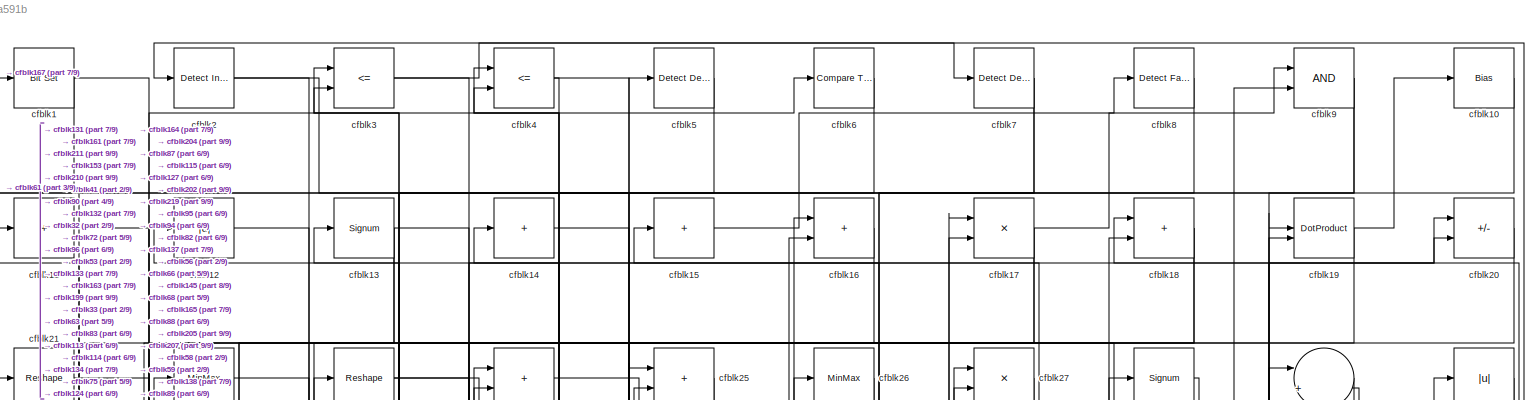
[diagram: root canvas - part 1/9, full width, top band]
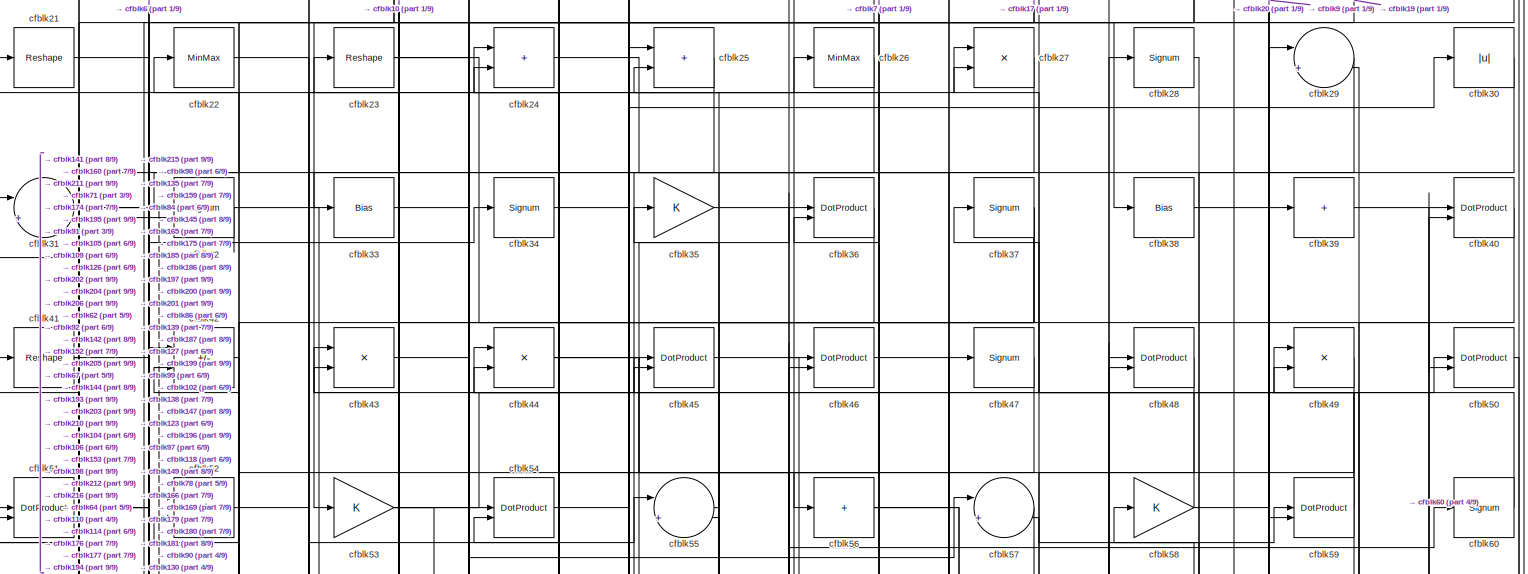
[diagram: root canvas - part 2/9, full width, top band]
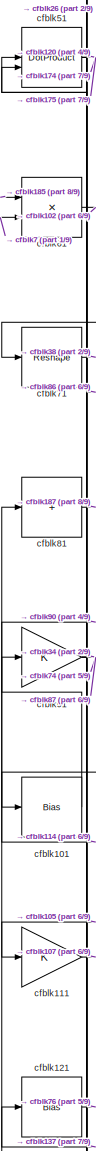
[diagram: root canvas - part 3/9, middle left region]
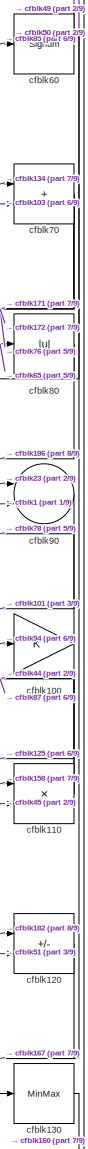
[diagram: root canvas - part 4/9, middle right region]
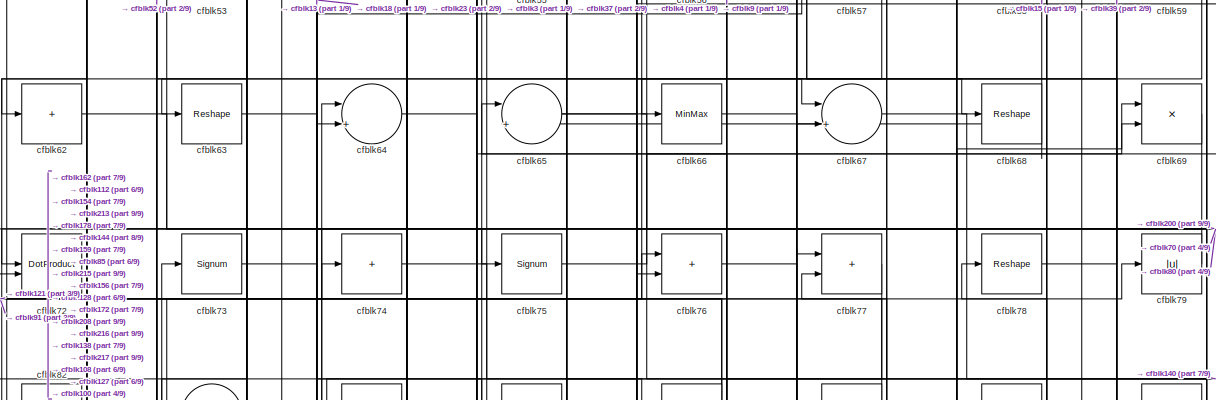
[diagram: root canvas - part 5/9, full width, top band]
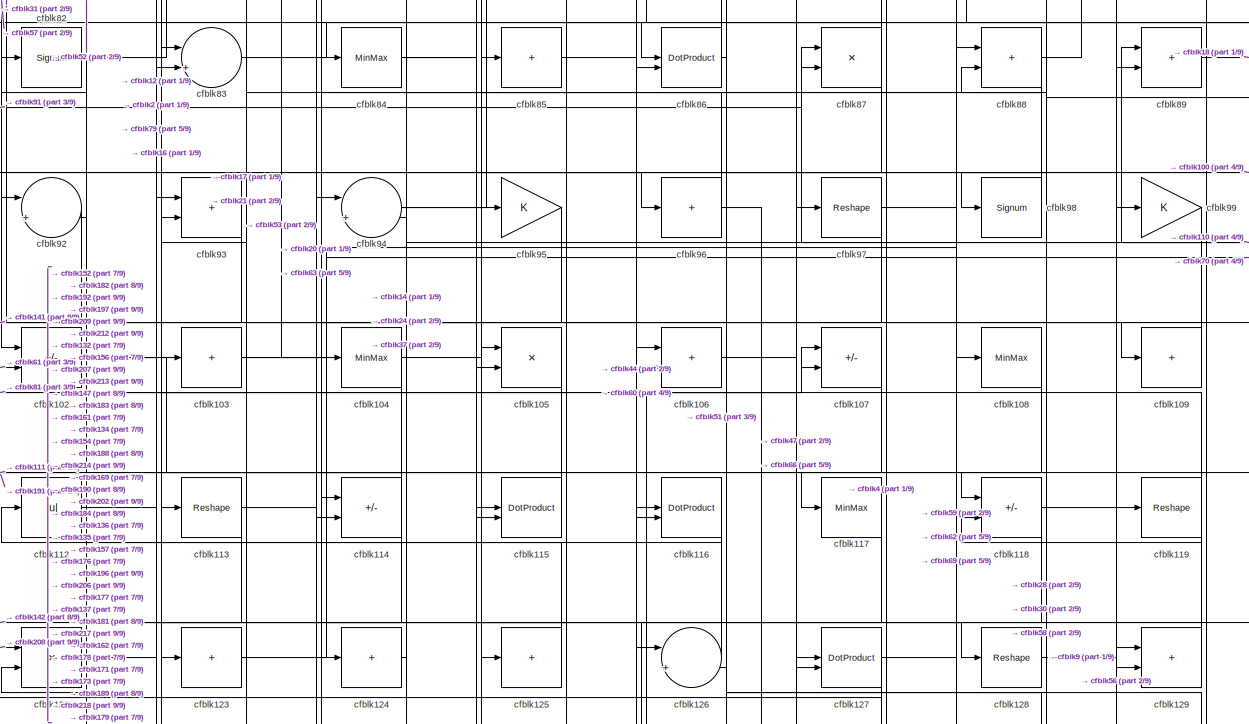
[diagram: root canvas - part 6/9, full width, middle band]
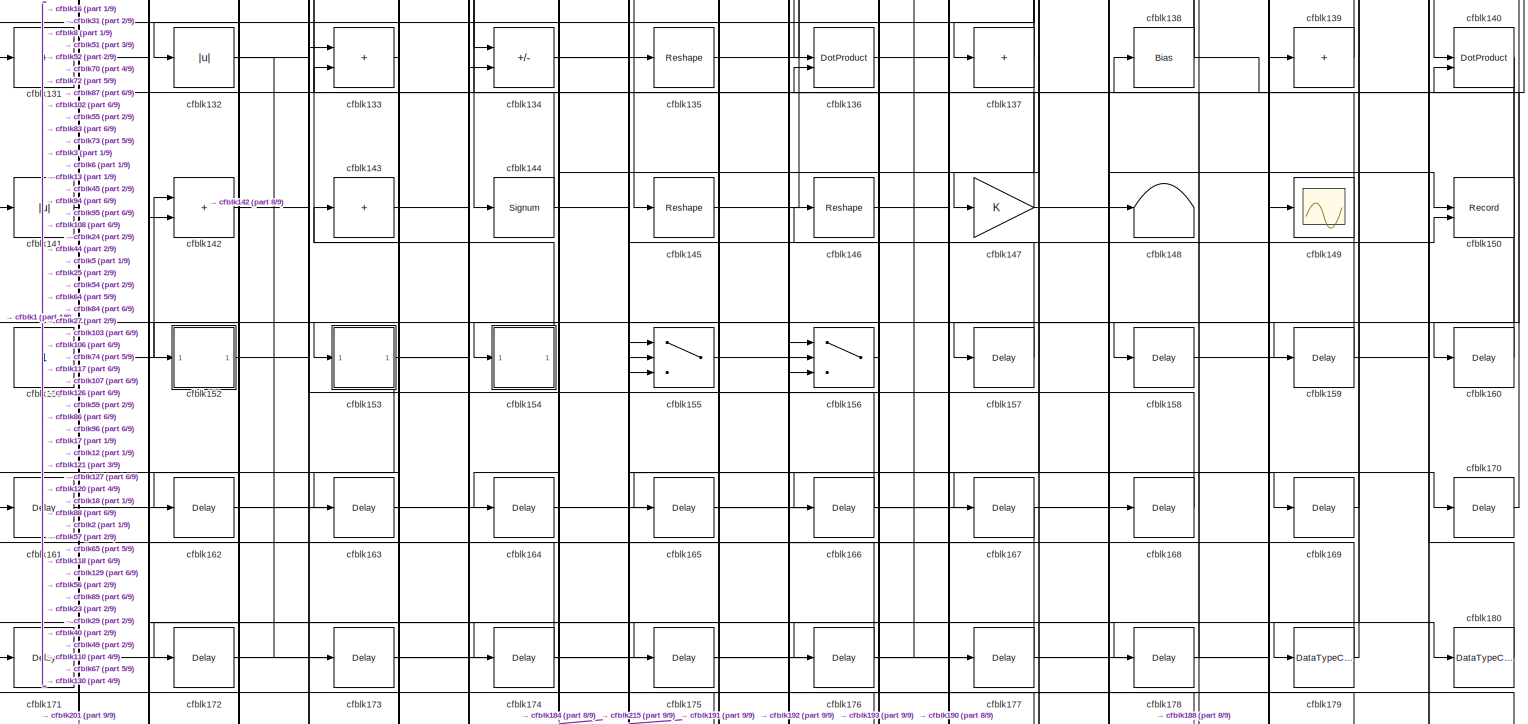
[diagram: root canvas - part 7/9, full width, bottom band]
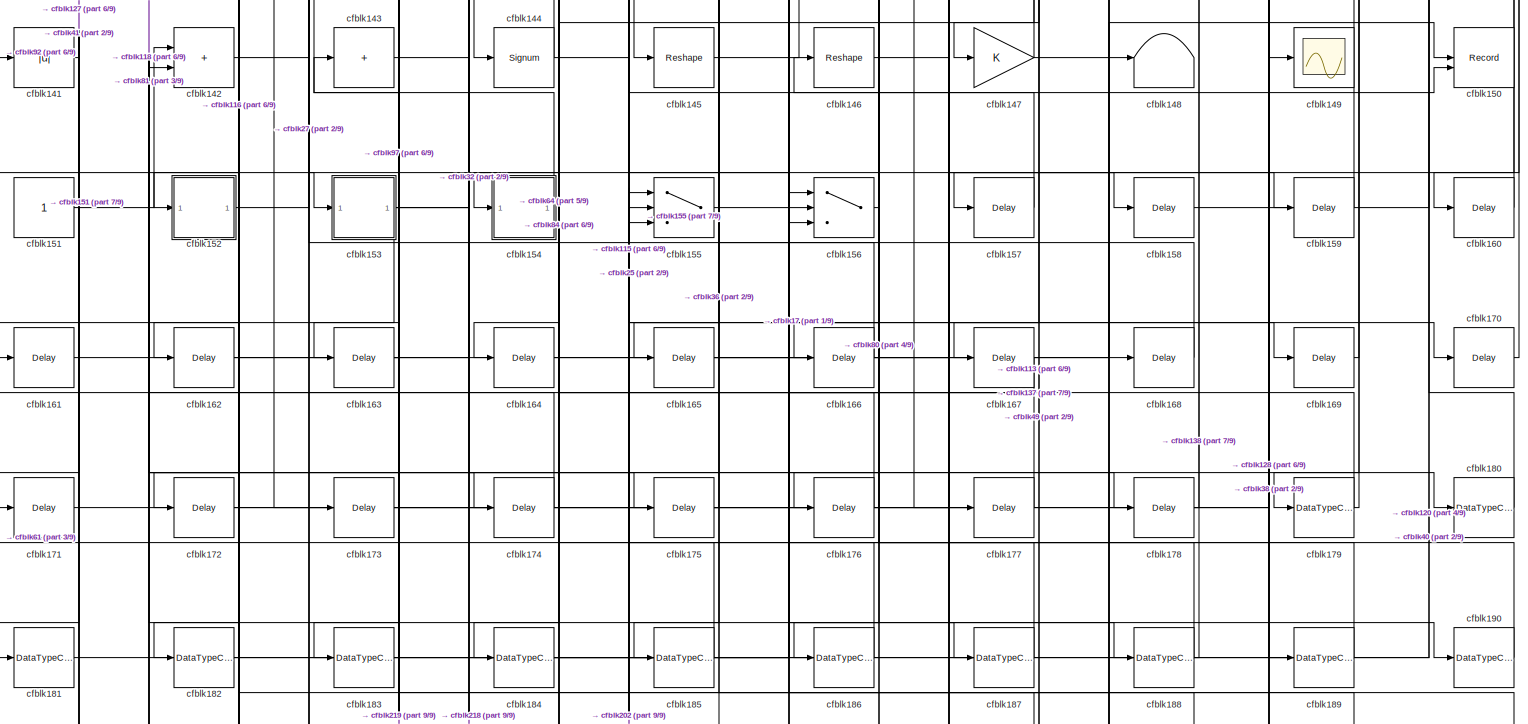
[diagram: root canvas - part 8/9, full width, bottom band]
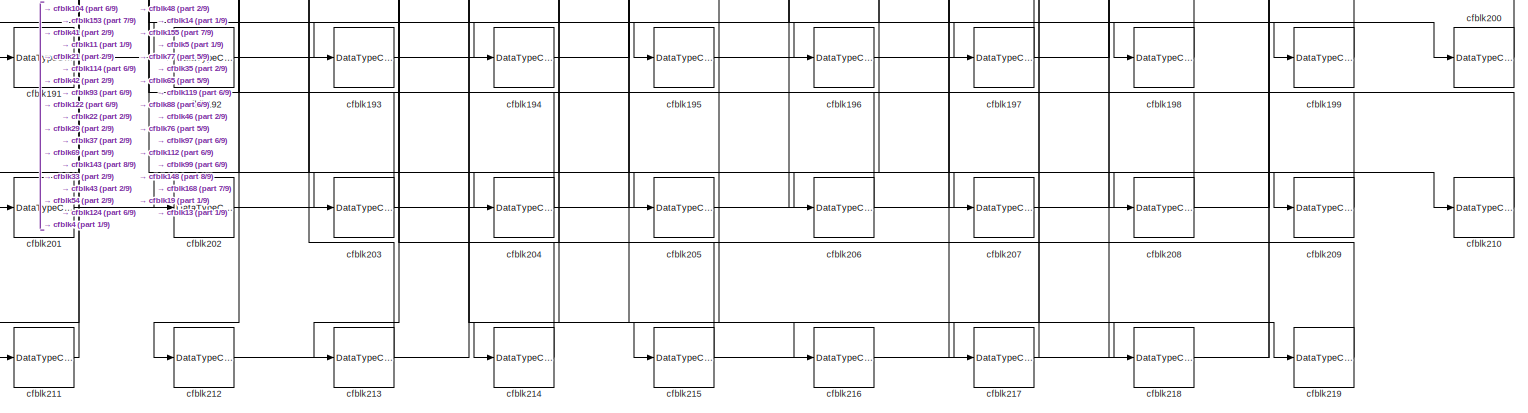
[diagram: root canvas - part 9/9, full width, bottom band]
MODEL slx_0cc3bbaa591b
KIND model
CONFIG AbsTol = auto
CONFIG EnableMultiTasking = off
CONFIG FixedStep = auto
CONFIG MaxStep = auto
CONFIG MinStep = auto
CONFIG RelTol = 1e-3
CONFIG SampleTimeConstraint = Unconstrained
CONFIG SolverName = VariableStepAuto
CONFIG StartTime = 0.0
CONFIG StopTime = 10.0
BLOCK [Reference] cfblk1  REF=simulink/Logic and Bit
Operations/Bit Set
  LibrarySourceBlock = hdlsllib/Logic and Bit\nOperations/Bit Set
  SourceBlock = simulink/Logic and Bit\nOperations/Bit Set
  SourceType = Bit Set
BLOCK [Bias] cfblk10
  Bias = 0.0
  SaturateOnIntegerOverflow = off
BLOCK [Gain] cfblk100
BLOCK [Bias] cfblk101
  Bias = 0.0
  SaturateOnIntegerOverflow = off
BLOCK [Sum] cfblk102
  IconShape = rectangular
  Inputs = +-
BLOCK [Sum] cfblk103
  IconShape = rectangular
  Inputs = +
BLOCK [MinMax] cfblk104
BLOCK [Product] cfblk105
  Inputs = */
  RndMeth = Zero
  SaturateOnIntegerOverflow = on
BLOCK [Sum] cfblk106
  IconShape = rectangular
BLOCK [Sum] cfblk107
  IconShape = rectangular
  Inputs = +-
BLOCK [MinMax] cfblk108
BLOCK [Sum] cfblk109
  IconShape = rectangular
  Inputs = +
BLOCK [Sum] cfblk11
  IconShape = rectangular
  Inputs = +
BLOCK [Product] cfblk110
  Inputs = */
  RndMeth = Zero
  SaturateOnIntegerOverflow = on
BLOCK [Gain] cfblk111
BLOCK [Abs] cfblk112
  SaturateOnIntegerOverflow = off
BLOCK [Reshape] cfblk113
BLOCK [Sum] cfblk114
  IconShape = rectangular
  Inputs = +-
BLOCK [DotProduct] cfblk115
  OutDataTypeStr = Inherit: Inherit via internal rule
BLOCK [DotProduct] cfblk116
  OutDataTypeStr = Inherit: Inherit via internal rule
BLOCK [MinMax] cfblk117
BLOCK [Sum] cfblk118
  IconShape = rectangular
  Inputs = +-
BLOCK [Reshape] cfblk119
BLOCK [Abs] cfblk12
  SaturateOnIntegerOverflow = off
BLOCK [Sum] cfblk120
  IconShape = rectangular
  Inputs = +-
BLOCK [Bias] cfblk121
  Bias = 0.0
  SaturateOnIntegerOverflow = off
BLOCK [Product] cfblk122
  Inputs = */
  RndMeth = Zero
  SaturateOnIntegerOverflow = on
BLOCK [Sum] cfblk123
  IconShape = rectangular
  Inputs = +
BLOCK [Sum] cfblk124
  IconShape = rectangular
  Inputs = +
BLOCK [Sum] cfblk125
  IconShape = rectangular
  Inputs = +
BLOCK [Sum] cfblk126
  Inputs = |++
BLOCK [DotProduct] cfblk127
  OutDataTypeStr = Inherit: Inherit via internal rule
BLOCK [Reshape] cfblk128
BLOCK [Sum] cfblk129
  IconShape = rectangular
BLOCK [Signum] cfblk13
BLOCK [MinMax] cfblk130
BLOCK [Sum] cfblk131
  IconShape = rectangular
  Inputs = +
BLOCK [Abs] cfblk132
  SaturateOnIntegerOverflow = off
BLOCK [Sum] cfblk133
  IconShape = rectangular
BLOCK [Sum] cfblk134
  IconShape = rectangular
  Inputs = +-
BLOCK [Reshape] cfblk135
BLOCK [DotProduct] cfblk136
  OutDataTypeStr = Inherit: Inherit via internal rule
BLOCK [Sum] cfblk137
  IconShape = rectangular
  Inputs = +
BLOCK [Bias] cfblk138
  Bias = 0.0
  SaturateOnIntegerOverflow = off
BLOCK [Sum] cfblk139
  IconShape = rectangular
  Inputs = +
BLOCK [Sum] cfblk14
  IconShape = rectangular
  Inputs = +
BLOCK [DotProduct] cfblk140
  OutDataTypeStr = Inherit: Inherit via internal rule
BLOCK [Abs] cfblk141
  SaturateOnIntegerOverflow = off
BLOCK [Sum] cfblk142
  IconShape = rectangular
BLOCK [Sum] cfblk143
  IconShape = rectangular
  Inputs = +
BLOCK [Signum] cfblk144
BLOCK [Reshape] cfblk145
BLOCK [Reshape] cfblk146
BLOCK [Gain] cfblk147
BLOCK [Terminator] cfblk148
BLOCK [Scope] cfblk149
  Floating = off
  NumInputPorts = 1
  ScopeSpecificationString = Simulink.scopes.TimeScopeBlockCfg('CurrentConfiguration', extmgr.ConfigurationSet(extmgr.Configuration('Core','General UI',true),extmgr.Configuration('Core','Source UI',true),extmgr.Configuration('Sources','WiredSimulink',true,'DataLoggingVariableName','ScopeData2','DataLoggingSaveFormat','Array','DataLoggingLimitDataPoints',true,'DataLoggingDecimation','1'),extmgr.Configuration('Visuals','Time Do...<+868ch>
BLOCK [Sum] cfblk15
  IconShape = rectangular
  Inputs = +
BLOCK [Record] cfblk150
  CompatibilityTag = XY
  FileSettingsInternal = {"entries":[{"content":{"excelSettings":{"content":{},"type":"Streamout.ExcelSettings"}},"type":"Streamout.FileSettingStorage","uuid":""}],"packageUris":["http:\/\/schema.mathworks.com\/mf0\/streamout_blocks\/R2020a"],"version":"1.0"}
  Layout = [1 1]
  SignalsInternal = {"entries":[{"content":{"signals":[{"content":{"blockPath":[],"dimensions":[1],"domain":"","lineColor":"#a2142f","plots":[1],"port":1,"signalID":2350,"signalName":"XY Graph:1"},"type":"RecordBlkView.Signal","uuid":""},{"content":{"blockPath":[],"dimensions":[1],"domain":"","lineColor":"#139fff","plots":[1],"port":2,"signalID":2353,"signalName":"XY Graph:2"},"type":"RecordBlkView.Signal","uuid":""}...<+146ch>
  VisualizationBindings = {"xyplotplugin":{"info":[{"series":[{"bindingParametersList":[{"parameter":"X-Axis","signalID":2350,"signalName":"XY Graph:1"},{"parameter":"Y-Axis","signalID":2353,"signalName":"XY Graph:2"}],"seriesID":37193}],"subplotID":1}]}}
  st = -1
BLOCK [Constant] cfblk151
  SampleTime = -1
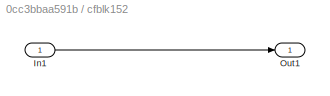
BLOCK [SubSystem] cfblk152
  LibrarySourceBlock = hdlsllib/Ports &\nSubsystems/Subsystem
BLOCK [Inport] cfblk152/In1
BLOCK [Outport] cfblk152/Out1
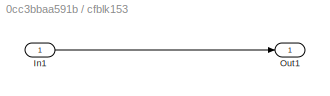
BLOCK [SubSystem] cfblk153
  LibrarySourceBlock = hdlsllib/Ports &\nSubsystems/Subsystem
BLOCK [Inport] cfblk153/In1
BLOCK [Outport] cfblk153/Out1
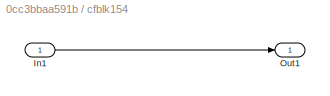
BLOCK [SubSystem] cfblk154
  LibrarySourceBlock = hdlsllib/Ports &\nSubsystems/Subsystem
BLOCK [Inport] cfblk154/In1
BLOCK [Outport] cfblk154/Out1
BLOCK [Switch] cfblk155
  InputSameDT = off
  SaturateOnIntegerOverflow = off
BLOCK [Switch] cfblk156
  InputSameDT = off
  SaturateOnIntegerOverflow = off
BLOCK [Delay] cfblk157
  InputPortMap = u0
  SampleTime = 1
BLOCK [Delay] cfblk158
  InputPortMap = u0
  SampleTime = 1
BLOCK [Delay] cfblk159
  InputPortMap = u0
  SampleTime = 1
BLOCK [Sum] cfblk16
  IconShape = rectangular
BLOCK [Delay] cfblk160
  InputPortMap = u0
  SampleTime = 1
BLOCK [Delay] cfblk161
  InputPortMap = u0
  SampleTime = 1
BLOCK [Delay] cfblk162
  InputPortMap = u0
  SampleTime = 1
BLOCK [Delay] cfblk163
  InputPortMap = u0
  SampleTime = 1
BLOCK [Delay] cfblk164
  InputPortMap = u0
  SampleTime = 1
BLOCK [Delay] cfblk165
  InputPortMap = u0
  SampleTime = 1
BLOCK [Delay] cfblk166
  InputPortMap = u0
  SampleTime = 1
BLOCK [Delay] cfblk167
  InputPortMap = u0
  SampleTime = 1
BLOCK [Delay] cfblk168
  InputPortMap = u0
  SampleTime = 1
BLOCK [Delay] cfblk169
  InputPortMap = u0
  SampleTime = 1
BLOCK [Product] cfblk17
  Inputs = */
  RndMeth = Zero
  SaturateOnIntegerOverflow = on
BLOCK [Delay] cfblk170
  InputPortMap = u0
  SampleTime = 1
BLOCK [Delay] cfblk171
  InputPortMap = u0
  SampleTime = 1
BLOCK [Delay] cfblk172
  InputPortMap = u0
  SampleTime = 1
BLOCK [Delay] cfblk173
  InputPortMap = u0
  SampleTime = 1
BLOCK [Delay] cfblk174
  InputPortMap = u0
  SampleTime = 1
BLOCK [Delay] cfblk175
  InputPortMap = u0
  SampleTime = 1
BLOCK [Delay] cfblk176
  InputPortMap = u0
  SampleTime = 1
BLOCK [Delay] cfblk177
  InputPortMap = u0
  SampleTime = 1
BLOCK [Delay] cfblk178
  InputPortMap = u0
  SampleTime = 1
BLOCK [DataTypeConversion] cfblk179
  RndMeth = Floor
  SaturateOnIntegerOverflow = off
BLOCK [Sum] cfblk18
  IconShape = rectangular
BLOCK [DataTypeConversion] cfblk180
  OutDataTypeStr = uint8
  RndMeth = Floor
  SaturateOnIntegerOverflow = off
BLOCK [DataTypeConversion] cfblk181
  OutDataTypeStr = uint8
  RndMeth = Floor
  SaturateOnIntegerOverflow = off
BLOCK [DataTypeConversion] cfblk182
  OutDataTypeStr = uint8
  RndMeth = Floor
  SaturateOnIntegerOverflow = off
BLOCK [DataTypeConversion] cfblk183
  OutDataTypeStr = uint8
  RndMeth = Floor
  SaturateOnIntegerOverflow = off
BLOCK [DataTypeConversion] cfblk184
  OutDataTypeStr = uint8
  RndMeth = Floor
  SaturateOnIntegerOverflow = off
BLOCK [DataTypeConversion] cfblk185
  OutDataTypeStr = uint8
  RndMeth = Floor
  SaturateOnIntegerOverflow = off
BLOCK [DataTypeConversion] cfblk186
  OutDataTypeStr = uint8
  RndMeth = Floor
  SaturateOnIntegerOverflow = off
BLOCK [DataTypeConversion] cfblk187
  OutDataTypeStr = uint8
  RndMeth = Floor
  SaturateOnIntegerOverflow = off
BLOCK [DataTypeConversion] cfblk188
  RndMeth = Floor
  SaturateOnIntegerOverflow = off
BLOCK [DataTypeConversion] cfblk189
  OutDataTypeStr = uint8
  RndMeth = Floor
  SaturateOnIntegerOverflow = off
BLOCK [DotProduct] cfblk19
  OutDataTypeStr = Inherit: Inherit via internal rule
BLOCK [DataTypeConversion] cfblk190
  OutDataTypeStr = uint8
  RndMeth = Floor
  SaturateOnIntegerOverflow = off
BLOCK [DataTypeConversion] cfblk191
  OutDataTypeStr = uint8
  RndMeth = Floor
  SaturateOnIntegerOverflow = off
BLOCK [DataTypeConversion] cfblk192
  OutDataTypeStr = uint8
  RndMeth = Floor
  SaturateOnIntegerOverflow = off
BLOCK [DataTypeConversion] cfblk193
  OutDataTypeStr = uint8
  RndMeth = Floor
  SaturateOnIntegerOverflow = off
BLOCK [DataTypeConversion] cfblk194
  OutDataTypeStr = uint8
  RndMeth = Floor
  SaturateOnIntegerOverflow = off
BLOCK [DataTypeConversion] cfblk195
  OutDataTypeStr = uint8
  RndMeth = Floor
  SaturateOnIntegerOverflow = off
BLOCK [DataTypeConversion] cfblk196
  OutDataTypeStr = uint8
  RndMeth = Floor
  SaturateOnIntegerOverflow = off
BLOCK [DataTypeConversion] cfblk197
  OutDataTypeStr = uint8
  RndMeth = Floor
  SaturateOnIntegerOverflow = off
BLOCK [DataTypeConversion] cfblk198
  OutDataTypeStr = uint8
  RndMeth = Floor
  SaturateOnIntegerOverflow = off
BLOCK [DataTypeConversion] cfblk199
  OutDataTypeStr = uint8
  RndMeth = Floor
  SaturateOnIntegerOverflow = off
BLOCK [Reference] cfblk2  REF=simulink/Logic and Bit
Operations/Detect
Increase
  LibrarySourceBlock = hdlsllib/Logic and Bit\nOperations/Detect\nIncrease
  SourceBlock = simulink/Logic and Bit\nOperations/Detect\nIncrease
  SourceType = Detect Increase
BLOCK [Sum] cfblk20
  IconShape = rectangular
  Inputs = +-
BLOCK [DataTypeConversion] cfblk200
  OutDataTypeStr = uint8
  RndMeth = Floor
  SaturateOnIntegerOverflow = off
BLOCK [DataTypeConversion] cfblk201
  OutDataTypeStr = uint8
  RndMeth = Floor
  SaturateOnIntegerOverflow = off
BLOCK [DataTypeConversion] cfblk202
  RndMeth = Floor
  SaturateOnIntegerOverflow = off
BLOCK [DataTypeConversion] cfblk203
  OutDataTypeStr = uint8
  RndMeth = Floor
  SaturateOnIntegerOverflow = off
BLOCK [DataTypeConversion] cfblk204
  OutDataTypeStr = uint8
  RndMeth = Floor
  SaturateOnIntegerOverflow = off
BLOCK [DataTypeConversion] cfblk205
  OutDataTypeStr = uint8
  RndMeth = Floor
  SaturateOnIntegerOverflow = off
BLOCK [DataTypeConversion] cfblk206
  OutDataTypeStr = uint8
  RndMeth = Floor
  SaturateOnIntegerOverflow = off
BLOCK [DataTypeConversion] cfblk207
  OutDataTypeStr = uint8
  RndMeth = Floor
  SaturateOnIntegerOverflow = off
BLOCK [DataTypeConversion] cfblk208
  OutDataTypeStr = uint8
  RndMeth = Floor
  SaturateOnIntegerOverflow = off
BLOCK [DataTypeConversion] cfblk209
  OutDataTypeStr = uint8
  RndMeth = Floor
  SaturateOnIntegerOverflow = off
BLOCK [Reshape] cfblk21
BLOCK [DataTypeConversion] cfblk210
  OutDataTypeStr = uint8
  RndMeth = Floor
  SaturateOnIntegerOverflow = off
BLOCK [DataTypeConversion] cfblk211
  OutDataTypeStr = uint8
  RndMeth = Floor
  SaturateOnIntegerOverflow = off
BLOCK [DataTypeConversion] cfblk212
  OutDataTypeStr = uint8
  RndMeth = Floor
  SaturateOnIntegerOverflow = off
BLOCK [DataTypeConversion] cfblk213
  OutDataTypeStr = uint8
  RndMeth = Floor
  SaturateOnIntegerOverflow = off
BLOCK [DataTypeConversion] cfblk214
  OutDataTypeStr = uint8
  RndMeth = Floor
  SaturateOnIntegerOverflow = off
BLOCK [DataTypeConversion] cfblk215
  RndMeth = Floor
  SaturateOnIntegerOverflow = off
BLOCK [DataTypeConversion] cfblk216
  OutDataTypeStr = uint8
  RndMeth = Floor
  SaturateOnIntegerOverflow = off
BLOCK [DataTypeConversion] cfblk217
  OutDataTypeStr = uint8
  RndMeth = Floor
  SaturateOnIntegerOverflow = off
BLOCK [DataTypeConversion] cfblk218
  OutDataTypeStr = uint8
  RndMeth = Floor
  SaturateOnIntegerOverflow = off
BLOCK [DataTypeConversion] cfblk219
  OutDataTypeStr = uint8
  RndMeth = Floor
  SaturateOnIntegerOverflow = off
BLOCK [MinMax] cfblk22
BLOCK [Reshape] cfblk23
BLOCK [Sum] cfblk24
  IconShape = rectangular
BLOCK [Sum] cfblk25
  IconShape = rectangular
BLOCK [MinMax] cfblk26
BLOCK [Product] cfblk27
  Inputs = */
  RndMeth = Zero
  SaturateOnIntegerOverflow = on
BLOCK [Signum] cfblk28
BLOCK [Sum] cfblk29
  Inputs = |++
BLOCK [RelationalOperator] cfblk3
  InputSameDT = off
  Operator = <=
  OutDataTypeStr = boolean
BLOCK [Abs] cfblk30
  SaturateOnIntegerOverflow = off
BLOCK [Sum] cfblk31
  Inputs = |++
BLOCK [Signum] cfblk32
BLOCK [Bias] cfblk33
  Bias = 0.0
  SaturateOnIntegerOverflow = off
BLOCK [Signum] cfblk34
BLOCK [Gain] cfblk35
BLOCK [DotProduct] cfblk36
  OutDataTypeStr = Inherit: Inherit via internal rule
BLOCK [Signum] cfblk37
BLOCK [Bias] cfblk38
  Bias = 0.0
  SaturateOnIntegerOverflow = off
BLOCK [Sum] cfblk39
  IconShape = rectangular
  Inputs = +
BLOCK [RelationalOperator] cfblk4
  InputSameDT = off
  Operator = <=
  OutDataTypeStr = boolean
BLOCK [DotProduct] cfblk40
  OutDataTypeStr = Inherit: Inherit via internal rule
BLOCK [Reshape] cfblk41
BLOCK [Sum] cfblk42
  IconShape = rectangular
  Inputs = +-
BLOCK [Product] cfblk43
  Inputs = */
  RndMeth = Zero
  SaturateOnIntegerOverflow = on
BLOCK [Product] cfblk44
  Inputs = */
  RndMeth = Zero
  SaturateOnIntegerOverflow = on
BLOCK [DotProduct] cfblk45
  OutDataTypeStr = Inherit: Inherit via internal rule
BLOCK [DotProduct] cfblk46
  OutDataTypeStr = Inherit: Inherit via internal rule
BLOCK [Signum] cfblk47
BLOCK [DotProduct] cfblk48
  OutDataTypeStr = Inherit: Inherit via internal rule
BLOCK [Product] cfblk49
  Inputs = */
  RndMeth = Zero
  SaturateOnIntegerOverflow = on
BLOCK [Reference] cfblk5  REF=simulink/Logic and Bit
Operations/Detect
Decrease
  LibrarySourceBlock = hdlsllib/Logic and Bit\nOperations/Detect\nDecrease
  SourceBlock = simulink/Logic and Bit\nOperations/Detect\nDecrease
  SourceType = Detect Decrease
BLOCK [DotProduct] cfblk50
  OutDataTypeStr = Inherit: Inherit via internal rule
BLOCK [DotProduct] cfblk51
  OutDataTypeStr = Inherit: Inherit via internal rule
BLOCK [Sum] cfblk52
  IconShape = rectangular
  Inputs = +-
BLOCK [Gain] cfblk53
BLOCK [DotProduct] cfblk54
  OutDataTypeStr = Inherit: Inherit via internal rule
BLOCK [Sum] cfblk55
  Inputs = |++
BLOCK [Sum] cfblk56
  IconShape = rectangular
  Inputs = +
BLOCK [Sum] cfblk57
  Inputs = |++
BLOCK [Gain] cfblk58
BLOCK [DotProduct] cfblk59
  OutDataTypeStr = Inherit: Inherit via internal rule
BLOCK [Reference] cfblk6  REF=hdlsllib/Logic and Bit
Operations/Compare
To Constant
  SourceBlock = hdlsllib/Logic and Bit\nOperations/Compare\nTo Constant
  SourceType = Compare To Constant
BLOCK [Signum] cfblk60
BLOCK [Product] cfblk61
  Inputs = */
  RndMeth = Zero
  SaturateOnIntegerOverflow = on
BLOCK [Sum] cfblk62
  IconShape = rectangular
  Inputs = +
BLOCK [Reshape] cfblk63
BLOCK [Sum] cfblk64
  Inputs = |++
BLOCK [Sum] cfblk65
  Inputs = |++
BLOCK [MinMax] cfblk66
BLOCK [Sum] cfblk67
  Inputs = |++
BLOCK [Reshape] cfblk68
BLOCK [Product] cfblk69
  Inputs = */
  RndMeth = Zero
  SaturateOnIntegerOverflow = on
BLOCK [Reference] cfblk7  REF=simulink/Logic and Bit
Operations/Detect
Decrease
  LibrarySourceBlock = hdlsllib/Logic and Bit\nOperations/Detect\nDecrease
  SourceBlock = simulink/Logic and Bit\nOperations/Detect\nDecrease
  SourceType = Detect Decrease
BLOCK [Sum] cfblk70
  IconShape = rectangular
BLOCK [Reshape] cfblk71
BLOCK [DotProduct] cfblk72
  OutDataTypeStr = Inherit: Inherit via internal rule
BLOCK [Signum] cfblk73
BLOCK [Sum] cfblk74
  IconShape = rectangular
  Inputs = +
BLOCK [Signum] cfblk75
BLOCK [Sum] cfblk76
  IconShape = rectangular
BLOCK [Sum] cfblk77
  IconShape = rectangular
BLOCK [Reshape] cfblk78
BLOCK [Abs] cfblk79
  SaturateOnIntegerOverflow = off
BLOCK [Reference] cfblk8  REF=hdlsllib/Logic and Bit
Operations/Detect Fall
Negative
  SourceBlock = hdlsllib/Logic and Bit\nOperations/Detect Fall\nNegative
  SourceType = Detect Fall Negative
BLOCK [Abs] cfblk80
  SaturateOnIntegerOverflow = off
BLOCK [Sum] cfblk81
  IconShape = rectangular
  Inputs = +
BLOCK [Signum] cfblk82
BLOCK [Sum] cfblk83
  Inputs = |++
BLOCK [MinMax] cfblk84
BLOCK [Sum] cfblk85
  IconShape = rectangular
  Inputs = +
BLOCK [DotProduct] cfblk86
  OutDataTypeStr = Inherit: Inherit via internal rule
BLOCK [Product] cfblk87
  Inputs = */
  RndMeth = Zero
  SaturateOnIntegerOverflow = on
BLOCK [Sum] cfblk88
  IconShape = rectangular
BLOCK [Sum] cfblk89
  IconShape = rectangular
BLOCK [Logic] cfblk9
  AllPortsSameDT = off
  OutDataTypeStr = boolean
BLOCK [Sum] cfblk90
  Inputs = |++
BLOCK [Gain] cfblk91
BLOCK [Sum] cfblk92
  Inputs = |++
BLOCK [Sum] cfblk93
  IconShape = rectangular
BLOCK [Sum] cfblk94
  Inputs = |++
BLOCK [Gain] cfblk95
BLOCK [Sum] cfblk96
  IconShape = rectangular
  Inputs = +
BLOCK [Reshape] cfblk97
BLOCK [Signum] cfblk98
BLOCK [Gain] cfblk99
NET cfblk100:1 -> cfblk125:1, cfblk78:1
LINE cfblk101:1 -> cfblk91:1
NET cfblk102:1 -> cfblk124:1, cfblk156:3
NET cfblk103:1 -> cfblk156:2, cfblk70:2
NET cfblk104:1 -> cfblk105:1, cfblk191:1
LINE cfblk105:1 -> cfblk111:1
LINE cfblk106:1 -> cfblk47:1
LINE cfblk107:1 -> cfblk117:1
LINE cfblk108:1 -> cfblk154:1
LINE cfblk109:1 -> cfblk89:1
LINE cfblk10:1 -> cfblk33:1
NET cfblk110:1 -> cfblk44:1, cfblk87:1
LINE cfblk111:1 -> cfblk107:2
LINE cfblk112:1 -> cfblk79:1
NET cfblk113:1 -> cfblk123:1, cfblk20:2
NET cfblk114:1 -> cfblk192:1, cfblk81:1
LINE cfblk115:1 -> cfblk94:2
LINE cfblk116:1 -> cfblk182:1
LINE cfblk117:1 -> cfblk136:1
NET cfblk118:1 -> cfblk129:1, cfblk142:2, cfblk58:1
NET cfblk119:1 -> cfblk206:1, cfblk92:2
LINE cfblk11:1 -> cfblk210:1
LINE cfblk120:1 -> cfblk167:1
LINE cfblk121:1 -> cfblk76:1
LINE cfblk122:1 -> cfblk207:1
NET cfblk123:1 -> cfblk103:1, cfblk28:1
NET cfblk124:1 -> cfblk14:1, cfblk214:1
LINE cfblk125:1 -> cfblk82:1
LINE cfblk126:1 -> cfblk52:2
NET cfblk127:1 -> cfblk137:1, cfblk181:1, cfblk69:2
LINE cfblk128:1 -> cfblk189:1
LINE cfblk129:1 -> cfblk88:2
LINE cfblk12:1 -> cfblk96:1
LINE cfblk130:1 -> cfblk160:1
LINE cfblk131:1 -> cfblk180:1
NET cfblk132:1 -> cfblk173:1, cfblk83:2
LINE cfblk133:1 -> cfblk3:1
NET cfblk134:1 -> cfblk170:1, cfblk70:1
LINE cfblk135:1 -> cfblk107:1
LINE cfblk136:1 -> cfblk158:1
NET cfblk137:1 -> cfblk121:1, cfblk12:1, cfblk184:1
NET cfblk138:1 -> cfblk2:1, cfblk57:2, cfblk65:1
LINE cfblk139:1 -> cfblk23:1
NET cfblk13:1 -> cfblk132:1, cfblk134:2, cfblk72:2
NET cfblk140:1 -> cfblk133:2, cfblk157:1
LINE cfblk141:1 -> cfblk41:1
LINE cfblk142:1 -> cfblk27:1
LINE cfblk143:1 -> cfblk218:1
NET cfblk144:1 -> cfblk150:2, cfblk64:1
LINE cfblk145:1 -> cfblk17:1
LINE cfblk146:1 -> cfblk188:1
NET cfblk147:1 -> cfblk113:1, cfblk150:1
LINE cfblk14:1 -> cfblk219:1
LINE cfblk151:1 -> cfblk142:1
LINE cfblk152/In1:1 -> cfblk152/Out1:1
LINE cfblk152:1 -> cfblk55:1
LINE cfblk153/In1:1 -> cfblk153/Out1:1
NET cfblk153:1 -> cfblk201:1, cfblk45:1, cfblk57:1
LINE cfblk154/In1:1 -> cfblk154/Out1:1
LINE cfblk154:1 -> cfblk73:1
LINE cfblk155:1 -> cfblk190:1
LINE cfblk156:1 -> cfblk136:2
LINE cfblk157:1 -> cfblk126:2
LINE cfblk158:1 -> cfblk110:1
LINE cfblk159:1 -> cfblk25:1
LINE cfblk15:1 -> cfblk8:1
LINE cfblk160:1 -> cfblk31:1
LINE cfblk161:1 -> cfblk94:1
LINE cfblk162:1 -> cfblk88:1
LINE cfblk163:1 -> cfblk3:2
LINE cfblk164:1 -> cfblk17:2
LINE cfblk165:1 -> cfblk18:2
LINE cfblk166:1 -> cfblk45:2
LINE cfblk167:1 -> cfblk1:1
LINE cfblk168:1 -> cfblk133:1
LINE cfblk169:1 -> cfblk49:2
LINE cfblk16:1 -> cfblk161:1
LINE cfblk170:1 -> cfblk140:2
LINE cfblk171:1 -> cfblk129:2
LINE cfblk172:1 -> cfblk67:2
LINE cfblk173:1 -> cfblk89:2
LINE cfblk174:1 -> cfblk52:1
LINE cfblk175:1 -> cfblk55:2
LINE cfblk176:1 -> cfblk24:2
LINE cfblk177:1 -> cfblk44:2
LINE cfblk178:1 -> cfblk118:2
NET cfblk179:1 -> cfblk106:1, cfblk29:2
NET cfblk17:1 -> cfblk32:1, cfblk83:1, cfblk9:1
LINE cfblk180:1 -> cfblk40:1
LINE cfblk181:1 -> cfblk40:2
LINE cfblk182:1 -> cfblk120:1
LINE cfblk183:1 -> cfblk116:1
LINE cfblk184:1 -> cfblk116:2
LINE cfblk185:1 -> cfblk61:1
LINE cfblk186:1 -> cfblk36:1
LINE cfblk187:1 -> cfblk36:2
NET cfblk188:1 -> cfblk138:1, cfblk84:1
LINE cfblk189:1 -> cfblk146:1
NET cfblk18:1 -> cfblk114:2, cfblk63:1
LINE cfblk190:1 -> cfblk115:1
LINE cfblk191:1 -> cfblk155:1
LINE cfblk192:1 -> cfblk155:2
LINE cfblk193:1 -> cfblk155:3
LINE cfblk194:1 -> cfblk209:1
LINE cfblk195:1 -> cfblk48:1
LINE cfblk196:1 -> cfblk48:2
LINE cfblk197:1 -> cfblk112:1
LINE cfblk198:1 -> cfblk35:1
LINE cfblk199:1 -> cfblk13:1
NET cfblk19:1 -> cfblk10:1, cfblk53:1
NET cfblk1:1 -> cfblk153:1, cfblk90:2
LINE cfblk200:1 -> cfblk46:1
LINE cfblk201:1 -> cfblk46:2
NET cfblk202:1 -> cfblk148:1, cfblk5:1, cfblk97:1
LINE cfblk203:1 -> cfblk42:1
LINE cfblk204:1 -> cfblk42:2
LINE cfblk205:1 -> cfblk19:1
LINE cfblk206:1 -> cfblk22:1
LINE cfblk207:1 -> cfblk19:2
LINE cfblk208:1 -> cfblk122:1
LINE cfblk209:1 -> cfblk122:2
LINE cfblk20:1 -> cfblk115:2
LINE cfblk210:1 -> cfblk43:2
LINE cfblk211:1 -> cfblk11:1
LINE cfblk212:1 -> cfblk54:1
LINE cfblk213:1 -> cfblk93:1
LINE cfblk214:1 -> cfblk93:2
NET cfblk215:1 -> cfblk168:1, cfblk29:1, cfblk54:2
LINE cfblk216:1 -> cfblk77:1
LINE cfblk217:1 -> cfblk77:2
LINE cfblk218:1 -> cfblk119:1
LINE cfblk219:1 -> cfblk143:1
LINE cfblk21:1 -> cfblk195:1
LINE cfblk22:1 -> cfblk205:1
NET cfblk23:1 -> cfblk64:2, cfblk90:1
LINE cfblk24:1 -> cfblk127:1
LINE cfblk25:1 -> cfblk145:1
LINE cfblk26:1 -> cfblk71:1
LINE cfblk27:1 -> cfblk165:1
LINE cfblk28:1 -> cfblk118:1
LINE cfblk29:1 -> cfblk203:1
NET cfblk2:1 -> cfblk127:2, cfblk95:1
LINE cfblk30:1 -> cfblk98:1
NET cfblk31:1 -> cfblk105:2, cfblk109:1
NET cfblk32:1 -> cfblk144:1, cfblk31:2
LINE cfblk33:1 -> cfblk216:1
LINE cfblk34:1 -> cfblk26:1
LINE cfblk35:1 -> cfblk197:1
LINE cfblk36:1 -> cfblk185:1
NET cfblk37:1 -> cfblk114:1, cfblk193:1, cfblk62:1
LINE cfblk38:1 -> cfblk149:1
LINE cfblk39:1 -> cfblk50:2
NET cfblk3:1 -> cfblk75:1, cfblk7:1
LINE cfblk40:1 -> cfblk179:1
NET cfblk41:1 -> cfblk211:1, cfblk6:1
LINE cfblk42:1 -> cfblk202:1
LINE cfblk43:1 -> cfblk198:1
NET cfblk44:1 -> cfblk126:1, cfblk86:2
LINE cfblk45:1 -> cfblk110:2
LINE cfblk46:1 -> cfblk199:1
LINE cfblk47:1 -> cfblk92:1
LINE cfblk48:1 -> cfblk194:1
LINE cfblk49:1 -> cfblk147:1
NET cfblk4:1 -> cfblk204:1, cfblk68:1
LINE cfblk50:1 -> cfblk130:1
NET cfblk51:1 -> cfblk120:2, cfblk174:1, cfblk175:1
LINE cfblk52:1 -> cfblk67:1
NET cfblk53:1 -> cfblk104:1, cfblk106:2, cfblk50:1
LINE cfblk54:1 -> cfblk135:1
LINE cfblk55:1 -> cfblk25:2
NET cfblk56:1 -> cfblk139:1, cfblk99:1
LINE cfblk57:1 -> cfblk102:1
NET cfblk58:1 -> cfblk20:1, cfblk37:1
NET cfblk59:1 -> cfblk166:1, cfblk27:2, cfblk43:1
LINE cfblk5:1 -> cfblk164:1
LINE cfblk60:1 -> cfblk49:1
LINE cfblk61:1 -> cfblk102:2
LINE cfblk62:1 -> cfblk108:1
LINE cfblk63:1 -> cfblk85:1
LINE cfblk64:1 -> cfblk159:1
NET cfblk65:1 -> cfblk200:1, cfblk80:1
LINE cfblk66:1 -> cfblk128:1
LINE cfblk67:1 -> cfblk140:1
NET cfblk68:1 -> cfblk15:1, cfblk65:2
LINE cfblk69:1 -> cfblk213:1
LINE cfblk6:1 -> cfblk163:1
NET cfblk70:1 -> cfblk171:1, cfblk172:1, cfblk76:2
LINE cfblk71:1 -> cfblk38:1
LINE cfblk72:1 -> cfblk162:1
LINE cfblk73:1 -> cfblk178:1
LINE cfblk74:1 -> cfblk156:1
LINE cfblk75:1 -> cfblk69:1
LINE cfblk76:1 -> cfblk208:1
LINE cfblk77:1 -> cfblk215:1
LINE cfblk78:1 -> cfblk39:1
LINE cfblk79:1 -> cfblk72:1
NET cfblk7:1 -> cfblk56:1, cfblk61:2
LINE cfblk80:1 -> cfblk186:1
LINE cfblk81:1 -> cfblk187:1
LINE cfblk82:1 -> cfblk16:1
LINE cfblk83:1 -> cfblk86:1
NET cfblk84:1 -> cfblk169:1, cfblk30:1
LINE cfblk85:1 -> cfblk60:1
NET cfblk86:1 -> cfblk176:1, cfblk51:1, cfblk51:2
NET cfblk87:1 -> cfblk152:1, cfblk4:2
NET cfblk88:1 -> cfblk196:1, cfblk9:2
LINE cfblk89:1 -> cfblk18:1
LINE cfblk8:1 -> cfblk131:1
LINE cfblk90:1 -> cfblk101:1
NET cfblk91:1 -> cfblk34:1, cfblk74:1, cfblk87:2
LINE cfblk92:1 -> cfblk141:1
LINE cfblk93:1 -> cfblk212:1
NET cfblk94:1 -> cfblk100:1, cfblk16:2
LINE cfblk95:1 -> cfblk134:1
NET cfblk96:1 -> cfblk177:1, cfblk4:1
NET cfblk97:1 -> cfblk183:1, cfblk59:1
NET cfblk98:1 -> cfblk21:1, cfblk24:1
LINE cfblk99:1 -> cfblk217:1
NET cfblk9:1 -> cfblk59:2, cfblk66:1
note: NET lines group one-source signal fan-out (src -> all destinations, sorted); 1:1 wires keep LINE
